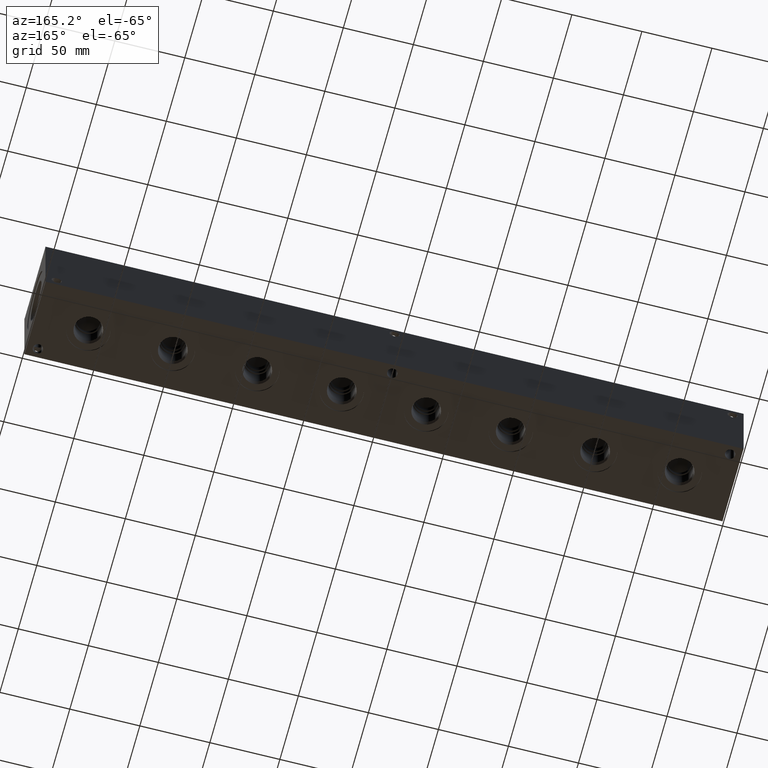
[diagram: clean part render]
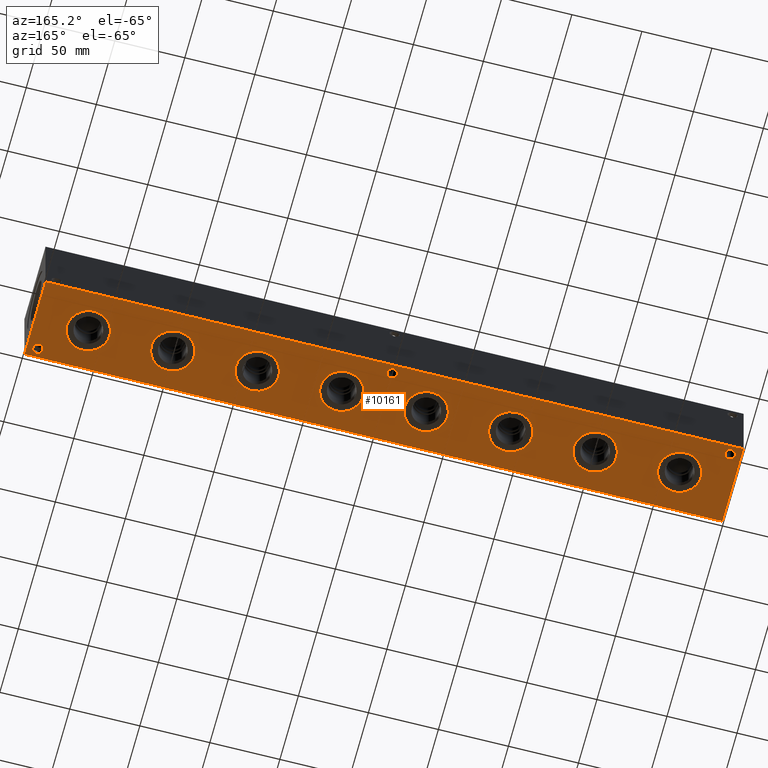
[diagram: same view with one face highlighted and labeled with its STEP entity id]
A machine part, auxiliary view. The second image highlights one B-rep face of the part: STEP entity #10161.
In plain terms, the highlighted planar face has unit normal (0, 0, 1).
Its self-contained STEP definition (entity closure, byte-faithful):
#214=CIRCLE('',#10403,15.3162);
#215=CIRCLE('',#10404,15.3162);
#225=CIRCLE('',#10419,15.3162);
#226=CIRCLE('',#10420,15.3162);
#236=CIRCLE('',#10435,15.3162);
#237=CIRCLE('',#10436,15.3162);
#247=CIRCLE('',#10451,15.3162);
#248=CIRCLE('',#10452,15.3162);
#258=CIRCLE('',#10467,15.3162);
#259=CIRCLE('',#10468,15.3162);
#269=CIRCLE('',#10483,15.3162);
#270=CIRCLE('',#10484,15.3162);
#298=CIRCLE('',#10529,15.3162);
#299=CIRCLE('',#10530,15.3162);
#355=CIRCLE('',#10625,15.3162);
#356=CIRCLE('',#10626,15.3162);
#374=CIRCLE('',#10670,3.5687);
#375=CIRCLE('',#10672,3.5687);
#376=CIRCLE('',#10674,3.5687);
#628=FACE_BOUND('',#2031,.T.);
#629=FACE_BOUND('',#2032,.T.);
#630=FACE_BOUND('',#2033,.T.);
#631=FACE_BOUND('',#2034,.T.);
#632=FACE_BOUND('',#2035,.T.);
#633=FACE_BOUND('',#2036,.T.);
#634=FACE_BOUND('',#2037,.T.);
#635=FACE_BOUND('',#2038,.T.);
#636=FACE_BOUND('',#2039,.T.);
#637=FACE_BOUND('',#2040,.T.);
#638=FACE_BOUND('',#2041,.T.);
#884=PLANE('',#10949);
#1414=FACE_OUTER_BOUND('',#2030,.T.);
#2030=EDGE_LOOP('',(#9180,#9181,#9182,#9183));
#2031=EDGE_LOOP('',(#9184,#9185));
#2032=EDGE_LOOP('',(#9186,#9187));
#2033=EDGE_LOOP('',(#9188,#9189));
#2034=EDGE_LOOP('',(#9190,#9191));
#2035=EDGE_LOOP('',(#9192,#9193));
#2036=EDGE_LOOP('',(#9194,#9195));
#2037=EDGE_LOOP('',(#9196,#9197));
#2038=EDGE_LOOP('',(#9198,#9199));
#2039=EDGE_LOOP('',(#9200));
#2040=EDGE_LOOP('',(#9201));
#2041=EDGE_LOOP('',(#9202));
#2849=LINE('',#17890,#3664);
#2852=LINE('',#17895,#3667);
#2854=LINE('',#17899,#3669);
#2856=LINE('',#17902,#3671);
#3664=VECTOR('',#13297,10.);
#3667=VECTOR('',#13302,10.);
#3669=VECTOR('',#13306,10.);
#3671=VECTOR('',#13310,10.);
#4536=VERTEX_POINT('',#16680);
#4537=VERTEX_POINT('',#16681);
#4547=VERTEX_POINT('',#16711);
#4548=VERTEX_POINT('',#16712);
#4558=VERTEX_POINT('',#16742);
#4559=VERTEX_POINT('',#16743);
#4569=VERTEX_POINT('',#16773);
#4570=VERTEX_POINT('',#16774);
#4580=VERTEX_POINT('',#16804);
#4581=VERTEX_POINT('',#16805);
#4591=VERTEX_POINT('',#16835);
#4592=VERTEX_POINT('',#16836);
#4626=VERTEX_POINT('',#16932);
#4627=VERTEX_POINT('',#16933);
#4700=VERTEX_POINT('',#17246);
#4701=VERTEX_POINT('',#17247);
#4725=VERTEX_POINT('',#17329);
#4726=VERTEX_POINT('',#17333);
#4727=VERTEX_POINT('',#17337);
#4900=VERTEX_POINT('',#17888);
#4901=VERTEX_POINT('',#17889);
#4902=VERTEX_POINT('',#17894);
#4903=VERTEX_POINT('',#17898);
#5803=EDGE_CURVE('',#4536,#4537,#214,.T.);
#5804=EDGE_CURVE('',#4537,#4536,#215,.T.);
#5818=EDGE_CURVE('',#4547,#4548,#225,.T.);
#5819=EDGE_CURVE('',#4548,#4547,#226,.T.);
#5833=EDGE_CURVE('',#4558,#4559,#236,.T.);
#5834=EDGE_CURVE('',#4559,#4558,#237,.T.);
#5848=EDGE_CURVE('',#4569,#4570,#247,.T.);
#5849=EDGE_CURVE('',#4570,#4569,#248,.T.);
#5863=EDGE_CURVE('',#4580,#4581,#258,.T.);
#5864=EDGE_CURVE('',#4581,#4580,#259,.T.);
#5878=EDGE_CURVE('',#4591,#4592,#269,.T.);
#5879=EDGE_CURVE('',#4592,#4591,#270,.T.);
#5923=EDGE_CURVE('',#4626,#4627,#298,.T.);
#5924=EDGE_CURVE('',#4627,#4626,#299,.T.);
#6027=EDGE_CURVE('',#4700,#4701,#355,.T.);
#6028=EDGE_CURVE('',#4701,#4700,#356,.T.);
#6072=EDGE_CURVE('',#4725,#4725,#374,.T.);
#6074=EDGE_CURVE('',#4726,#4726,#375,.T.);
#6076=EDGE_CURVE('',#4727,#4727,#376,.T.);
#6329=EDGE_CURVE('',#4900,#4901,#2849,.T.);
#6332=EDGE_CURVE('',#4902,#4900,#2852,.T.);
#6334=EDGE_CURVE('',#4903,#4902,#2854,.T.);
#6336=EDGE_CURVE('',#4901,#4903,#2856,.T.);
#9180=ORIENTED_EDGE('',*,*,#6336,.F.);
#9181=ORIENTED_EDGE('',*,*,#6329,.F.);
#9182=ORIENTED_EDGE('',*,*,#6332,.F.);
#9183=ORIENTED_EDGE('',*,*,#6334,.F.);
#9184=ORIENTED_EDGE('',*,*,#5803,.T.);
#9185=ORIENTED_EDGE('',*,*,#5804,.T.);
#9186=ORIENTED_EDGE('',*,*,#5818,.T.);
#9187=ORIENTED_EDGE('',*,*,#5819,.T.);
#9188=ORIENTED_EDGE('',*,*,#5833,.T.);
#9189=ORIENTED_EDGE('',*,*,#5834,.T.);
#9190=ORIENTED_EDGE('',*,*,#5848,.T.);
#9191=ORIENTED_EDGE('',*,*,#5849,.T.);
#9192=ORIENTED_EDGE('',*,*,#5863,.T.);
#9193=ORIENTED_EDGE('',*,*,#5864,.T.);
#9194=ORIENTED_EDGE('',*,*,#5878,.T.);
#9195=ORIENTED_EDGE('',*,*,#5879,.T.);
#9196=ORIENTED_EDGE('',*,*,#5923,.T.);
#9197=ORIENTED_EDGE('',*,*,#5924,.T.);
#9198=ORIENTED_EDGE('',*,*,#6027,.T.);
#9199=ORIENTED_EDGE('',*,*,#6028,.T.);
#9200=ORIENTED_EDGE('',*,*,#6072,.T.);
#9201=ORIENTED_EDGE('',*,*,#6074,.T.);
#9202=ORIENTED_EDGE('',*,*,#6076,.T.);
#10161=ADVANCED_FACE('',(#1414,#628,#629,#630,#631,#632,#633,#634,#635,
#636,#637,#638),#884,.F.);
#10403=AXIS2_PLACEMENT_3D('',#16682,#12047,#12048);
#10404=AXIS2_PLACEMENT_3D('',#16683,#12049,#12050);
#10419=AXIS2_PLACEMENT_3D('',#16713,#12083,#12084);
#10420=AXIS2_PLACEMENT_3D('',#16714,#12085,#12086);
#10435=AXIS2_PLACEMENT_3D('',#16744,#12119,#12120);
#10436=AXIS2_PLACEMENT_3D('',#16745,#12121,#12122);
#10451=AXIS2_PLACEMENT_3D('',#16775,#12155,#12156);
#10452=AXIS2_PLACEMENT_3D('',#16776,#12157,#12158);
#10467=AXIS2_PLACEMENT_3D('',#16806,#12191,#12192);
#10468=AXIS2_PLACEMENT_3D('',#16807,#12193,#12194);
#10483=AXIS2_PLACEMENT_3D('',#16837,#12227,#12228);
#10484=AXIS2_PLACEMENT_3D('',#16838,#12229,#12230);
#10529=AXIS2_PLACEMENT_3D('',#16934,#12335,#12336);
#10530=AXIS2_PLACEMENT_3D('',#16935,#12337,#12338);
#10625=AXIS2_PLACEMENT_3D('',#17248,#12557,#12558);
#10626=AXIS2_PLACEMENT_3D('',#17249,#12559,#12560);
#10670=AXIS2_PLACEMENT_3D('',#17331,#12661,#12662);
#10672=AXIS2_PLACEMENT_3D('',#17335,#12666,#12667);
#10674=AXIS2_PLACEMENT_3D('',#17339,#12671,#12672);
#10949=AXIS2_PLACEMENT_3D('',#17904,#13313,#13314);
#12047=DIRECTION('center_axis',(0.,0.,1.));
#12048=DIRECTION('ref_axis',(1.,0.,0.));
#12049=DIRECTION('center_axis',(0.,0.,1.));
#12050=DIRECTION('ref_axis',(1.,0.,0.));
#12083=DIRECTION('center_axis',(0.,0.,1.));
#12084=DIRECTION('ref_axis',(1.,0.,0.));
#12085=DIRECTION('center_axis',(0.,0.,1.));
#12086=DIRECTION('ref_axis',(1.,0.,0.));
#12119=DIRECTION('center_axis',(0.,0.,1.));
#12120=DIRECTION('ref_axis',(1.,0.,0.));
#12121=DIRECTION('center_axis',(0.,0.,1.));
#12122=DIRECTION('ref_axis',(1.,0.,0.));
#12155=DIRECTION('center_axis',(0.,0.,1.));
#12156=DIRECTION('ref_axis',(1.,0.,0.));
#12157=DIRECTION('center_axis',(0.,0.,1.));
#12158=DIRECTION('ref_axis',(1.,0.,0.));
#12191=DIRECTION('center_axis',(0.,0.,1.));
#12192=DIRECTION('ref_axis',(1.,0.,0.));
#12193=DIRECTION('center_axis',(0.,0.,1.));
#12194=DIRECTION('ref_axis',(1.,0.,0.));
#12227=DIRECTION('center_axis',(0.,0.,1.));
#12228=DIRECTION('ref_axis',(1.,0.,0.));
#12229=DIRECTION('center_axis',(0.,0.,1.));
#12230=DIRECTION('ref_axis',(1.,0.,0.));
#12335=DIRECTION('center_axis',(0.,0.,1.));
#12336=DIRECTION('ref_axis',(1.,0.,0.));
#12337=DIRECTION('center_axis',(0.,0.,1.));
#12338=DIRECTION('ref_axis',(1.,0.,0.));
#12557=DIRECTION('center_axis',(0.,0.,1.));
#12558=DIRECTION('ref_axis',(1.,0.,0.));
#12559=DIRECTION('center_axis',(0.,0.,1.));
#12560=DIRECTION('ref_axis',(1.,0.,0.));
#12661=DIRECTION('center_axis',(0.,0.,1.));
#12662=DIRECTION('ref_axis',(1.,0.,0.));
#12666=DIRECTION('center_axis',(0.,0.,1.));
#12667=DIRECTION('ref_axis',(1.,0.,0.));
#12671=DIRECTION('center_axis',(0.,0.,1.));
#12672=DIRECTION('ref_axis',(1.,0.,0.));
#13297=DIRECTION('',(0.,-1.,0.));
#13302=DIRECTION('',(-1.,0.,0.));
#13306=DIRECTION('',(0.,1.,0.));
#13310=DIRECTION('',(1.,0.,0.));
#13313=DIRECTION('center_axis',(0.,0.,1.));
#13314=DIRECTION('ref_axis',(1.,0.,0.));
#16680=CARTESIAN_POINT('',(475.6912,28.575,0.));
#16681=CARTESIAN_POINT('',(445.0588,28.575,0.));
#16682=CARTESIAN_POINT('Origin',(460.375,28.575,0.));
#16683=CARTESIAN_POINT('Origin',(460.375,28.575,0.));
#16711=CARTESIAN_POINT('',(415.3662,28.575,0.));
#16712=CARTESIAN_POINT('',(384.7338,28.575,0.));
#16713=CARTESIAN_POINT('Origin',(400.05,28.575,0.));
#16714=CARTESIAN_POINT('Origin',(400.05,28.575,0.));
#16742=CARTESIAN_POINT('',(355.0412,28.575,0.));
#16743=CARTESIAN_POINT('',(324.4088,28.575,0.));
#16744=CARTESIAN_POINT('Origin',(339.725,28.575,0.));
#16745=CARTESIAN_POINT('Origin',(339.725,28.575,0.));
#16773=CARTESIAN_POINT('',(294.7162,28.575,0.));
#16774=CARTESIAN_POINT('',(264.0838,28.575,0.));
#16775=CARTESIAN_POINT('Origin',(279.4,28.575,0.));
#16776=CARTESIAN_POINT('Origin',(279.4,28.575,0.));
#16804=CARTESIAN_POINT('',(234.3912,28.575,0.));
#16805=CARTESIAN_POINT('',(203.7588,28.575,0.));
#16806=CARTESIAN_POINT('Origin',(219.075,28.575,0.));
#16807=CARTESIAN_POINT('Origin',(219.075,28.575,0.));
#16835=CARTESIAN_POINT('',(174.0662,28.575,0.));
#16836=CARTESIAN_POINT('',(143.4338,28.575,0.));
#16837=CARTESIAN_POINT('Origin',(158.75,28.575,0.));
#16838=CARTESIAN_POINT('Origin',(158.75,28.575,0.));
#16932=CARTESIAN_POINT('',(113.7412,28.575,0.));
#16933=CARTESIAN_POINT('',(83.1088,28.575,0.));
#16934=CARTESIAN_POINT('Origin',(98.425,28.575,0.));
#16935=CARTESIAN_POINT('Origin',(98.425,28.575,0.));
#17246=CARTESIAN_POINT('',(53.4162,28.575,0.));
#17247=CARTESIAN_POINT('',(22.7838,28.575,0.));
#17248=CARTESIAN_POINT('Origin',(38.1,28.575,0.));
#17249=CARTESIAN_POINT('Origin',(38.1,28.575,0.));
#17329=CARTESIAN_POINT('',(486.9561,6.35,0.));
#17331=CARTESIAN_POINT('Origin',(490.5248,6.35,0.));
#17333=CARTESIAN_POINT('',(4.3561,50.8,0.));
#17335=CARTESIAN_POINT('Origin',(7.9248,50.8,0.));
#17337=CARTESIAN_POINT('',(245.6561,50.8,0.));
#17339=CARTESIAN_POINT('Origin',(249.2248,50.8,0.));
#17888=CARTESIAN_POINT('',(0.,57.15,0.));
#17889=CARTESIAN_POINT('',(0.,0.,0.));
#17890=CARTESIAN_POINT('',(0.,57.15,0.));
#17894=CARTESIAN_POINT('',(498.475,57.15,0.));
#17895=CARTESIAN_POINT('',(498.475,57.15,0.));
#17898=CARTESIAN_POINT('',(498.475,0.,0.));
#17899=CARTESIAN_POINT('',(498.475,0.,0.));
#17902=CARTESIAN_POINT('',(0.,0.,0.));
#17904=CARTESIAN_POINT('Origin',(249.2375,28.575,0.));